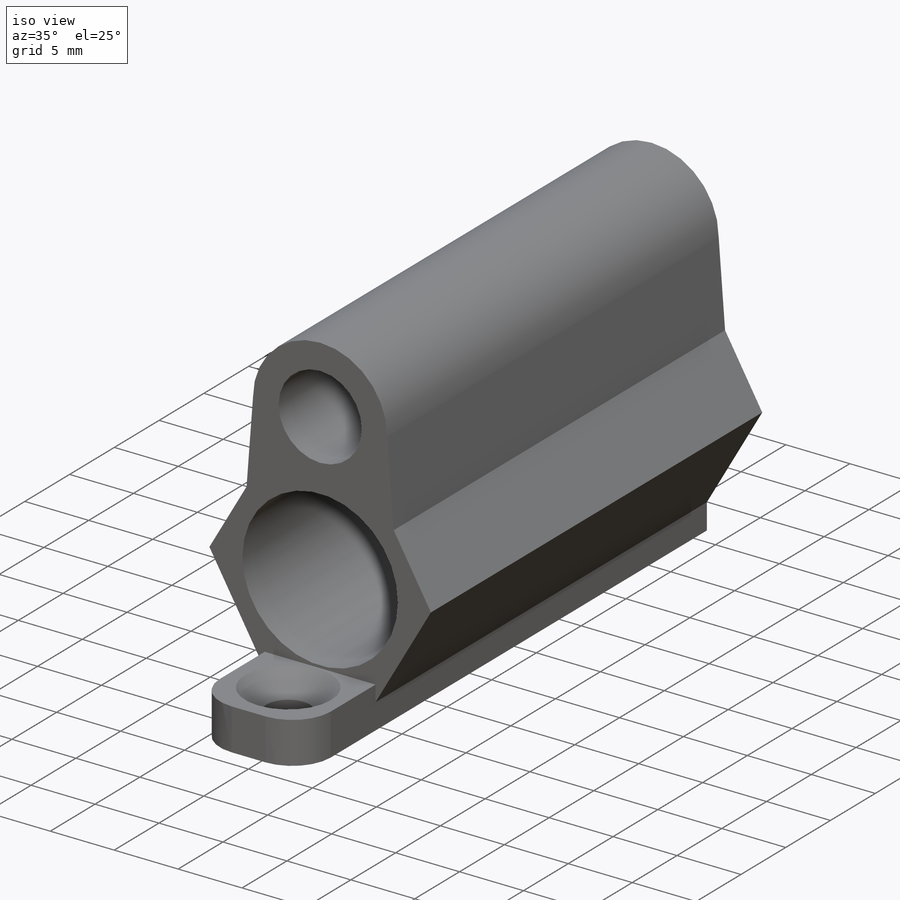
[diagram: iso view]
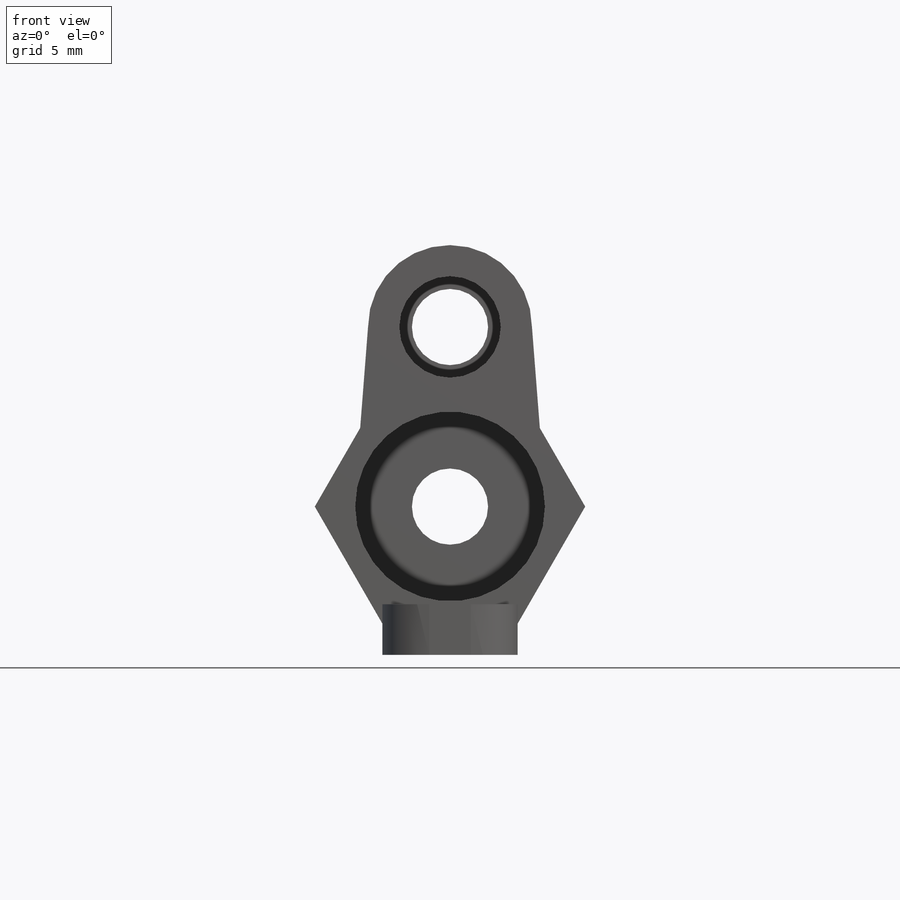
[diagram: front view]
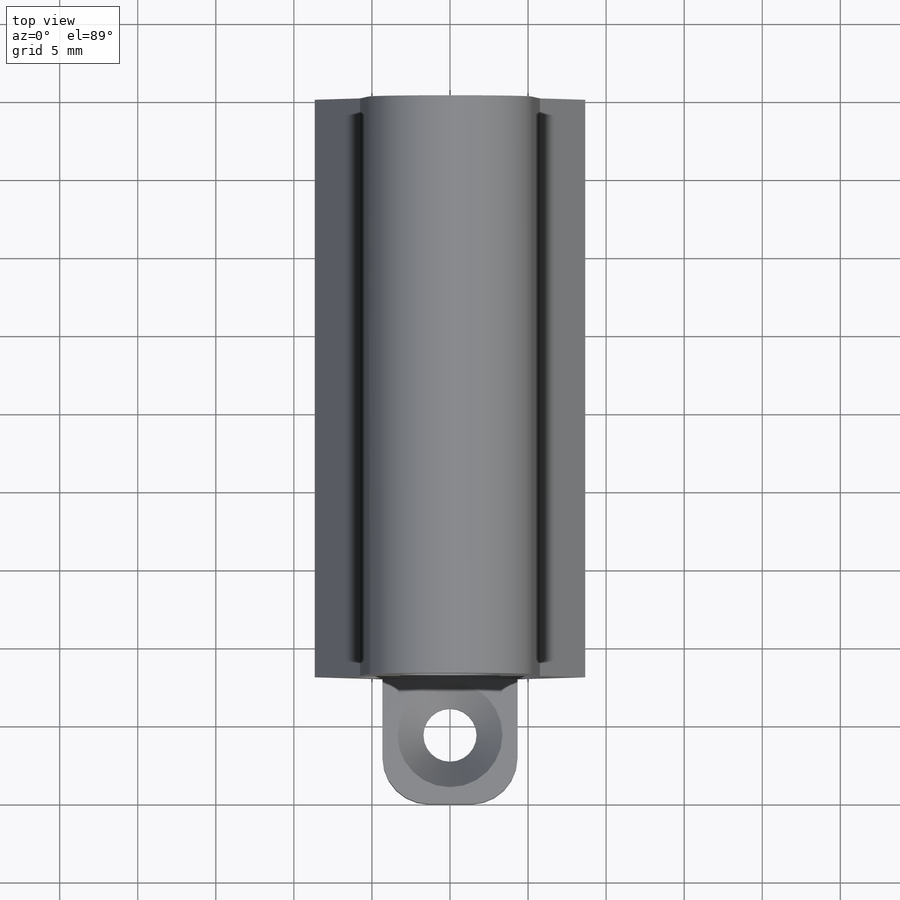
[diagram: top view]
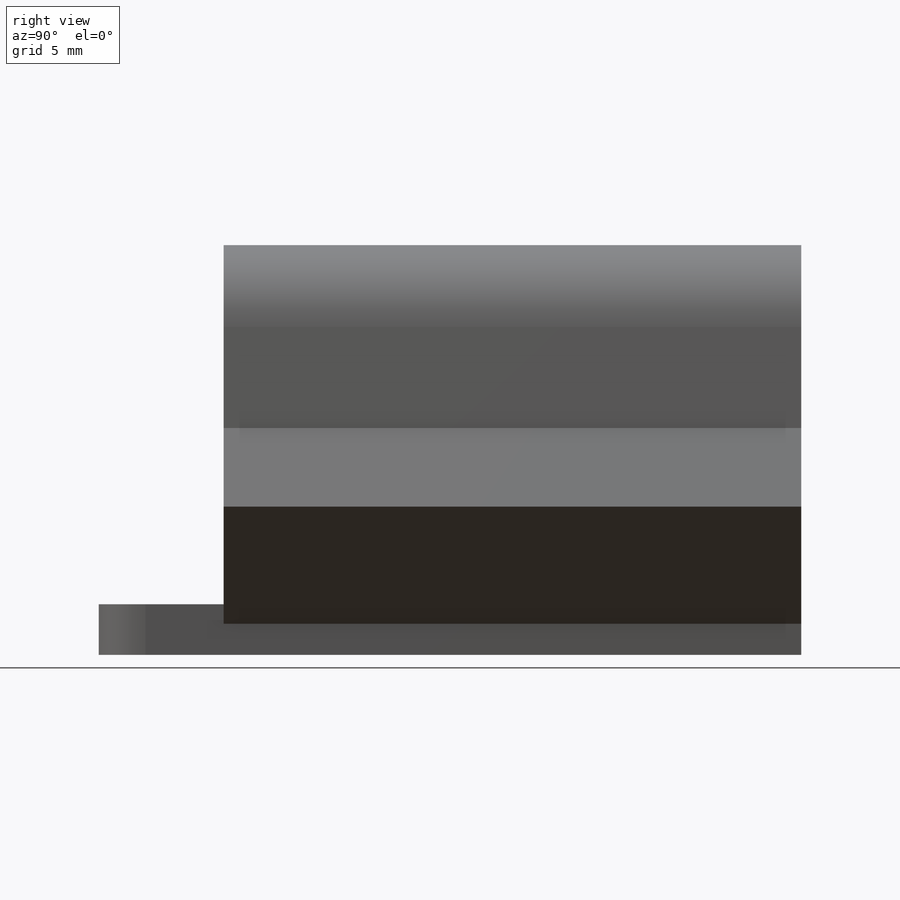
[diagram: right view]
SOLIDWORKS PART (.sldprt)
format: sldprt  version: not decoded by parser v0  size: 297,984 bytes
history: native  units: mm
features: sketch x9, extrude x4, material x1, cut_extrude x1, fillet x1, hole x1 (+11 scaffold rows collapsed)
feature tree (28):
  scaffold x11  (default folders/planes/origin — collapsed)
  material  "Material <not specified>"
  sketch  "Sketch1"  dims[c1.D1=15.0mm c1.D2=8.0mm c1.D3=4.88mm c1.D4=4.88mm c2.D2=6.0mm c2.D3=~43.639447mm]
  extrude  "Boss-Extrude2"  Depth=37mm
  sketch  "Sketch8"  dims[D1=~4.047096mm]
  cut_extrude  "Cut-Extrude1"  Depth=33mm
  sketch  "Sketch9"  dims[D1=~1.245909mm]
  sketch  "Sketch15"  dims[c1.D1=~9.662487mm c1.D2=12.15mm c2.D1=2.0mm]
  extrude  "Boss-Extrude4"  Depth=37mm
  sketch  "Sketch18"
  extrude  "Boss-Extrude5"  Depth=2mm
  sketch  "Sketch19"
  extrude  "Boss-Extrude6"  Depth=8mm
  fillet  "Fillet4"  Radius=3mm
  sketch  "Sketch20"
  hole  "CSK for M3 Hex Socket Countersunk Cap Screw1"  Diameter=3.4mm Depth=3.245909mm
  sketch  "3DSketch3"
  sketch  "Sketch21"  dims[hole-wizard template sketch: 55 standard entries collapsed; hole parameters kept: c17.Thru Hole Depth=~3.245909mm c17.Near C'Sink Dia.=6.72mm c17.D4=~3.666174mm c17.Near C'Sink Angle=90.0deg]
decode coverage: 12 of 16 modeling features carry decoded parameters
note: ~ marks probable driven/reference dimensions
note: suppression state not decoded; provenance and decode notes live in map.json
